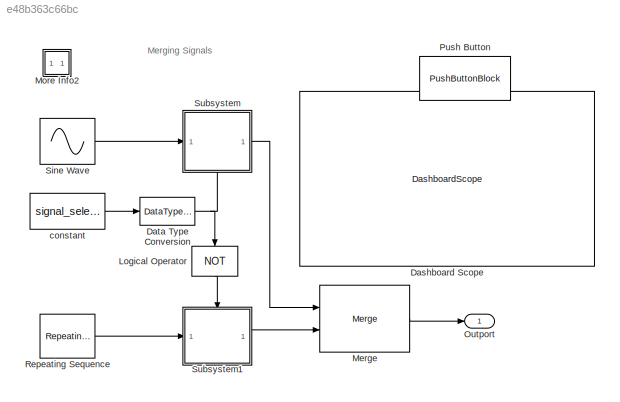
MODEL slx_e48b363c66bc
KIND model
CONFIG AbsTol = auto
CONFIG EnableMultiTasking = off
CONFIG FixedStep = auto
CONFIG MaxStep = auto
CONFIG MinStep = auto
CONFIG RelTol = 1e-3
CONFIG SampleTimeConstraint = Unconstrained
CONFIG SolverName = VariableStepAuto
CONFIG StartTime = 0.0
CONFIG StopTime = 10.0
WORKSPACE source: mxarray member
WORKSPACE signal_select: Simulink.Parameter (value not decoded)
BLOCK [DashboardScope] Dashboard Scope
BLOCK [DataTypeConversion] Data Type Conversion
  OutDataTypeStr = boolean
BLOCK [Logic] Logical Operator
  Inputs = 1
  NameLocation = left
  Operator = NOT
  OutDataTypeStr = boolean
  Ports = [1, 1]
BLOCK [Merge] Merge
  Ports = [2, 1]
BLOCK [SubSystem] More Info2
  OpenFcn = helpview(fullfile(docroot,'simulink','helptargets.map'),'ControlMergingSignalsWithThePushButtonBlockExample')
  Ports = []
  RequestExecContextInheritance = off
BLOCK [Outport] Outport
  VectorParamsAs1DForOutWhenUnconnected = off
BLOCK [PushButtonBlock] Push Button
  ButtonText = Signal Select
BLOCK [Reference] Repeating Sequence  REF=simulink/Sources/Repeating
Sequence
  Ports = [0, 1]
  SourceBlock = simulink/Sources/Repeating\nSequence
  SourceProductBaseCode = SL
  SourceType = Repeating table
BLOCK [Sin] Sine Wave
  Frequency = pi
  Ports = [0, 1]
  SampleTime = 0
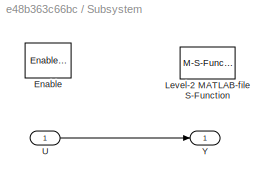
BLOCK [SubSystem] Subsystem
  NameLocation = top
  Ports = [1, 1, 1]
  RequestExecContextInheritance = off
  Tag = MergeExample
  TreatAsAtomicUnit = on
BLOCK [EnablePort] Subsystem/Enable
  Ports = []
  StatesWhenEnabling = reset
BLOCK [M-S-Function] Subsystem/Level-2 MATLAB-file S-Function
  FunctionName = mergefcn
  Ports = []
BLOCK [Inport] Subsystem/U
BLOCK [Outport] Subsystem/Y
  VectorParamsAs1DForOutWhenUnconnected = off
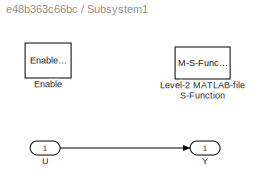
BLOCK [SubSystem] Subsystem1
  Ports = [1, 1, 1]
  RequestExecContextInheritance = off
  Tag = MergeExample
  TreatAsAtomicUnit = on
BLOCK [EnablePort] Subsystem1/Enable
  Ports = []
  StatesWhenEnabling = reset
BLOCK [M-S-Function] Subsystem1/Level-2 MATLAB-file S-Function
  FunctionName = mergefcn
  Ports = []
BLOCK [Inport] Subsystem1/U
BLOCK [Outport] Subsystem1/Y
  VectorParamsAs1DForOutWhenUnconnected = off
BLOCK [Constant] constant
  Value = signal_select
ANNOTATION (root): Merging Signals
NET Data Type Conversion:1 -> Logical Operator:1, Subsystem:enable
LINE Logical Operator:1 -> Subsystem1:enable
LINE Merge:1 -> Outport:1
LINE Repeating Sequence:1 -> Subsystem1:1
LINE Sine Wave:1 -> Subsystem:1
LINE Subsystem/U:1 -> Subsystem/Y:1
LINE Subsystem1/U:1 -> Subsystem1/Y:1
LINE Subsystem1:1 -> Merge:2
LINE Subsystem:1 -> Merge:1
LINE constant:1 -> Data Type Conversion:1
note: NET lines group one-source signal fan-out (src -> all destinations, sorted); 1:1 wires keep LINE
